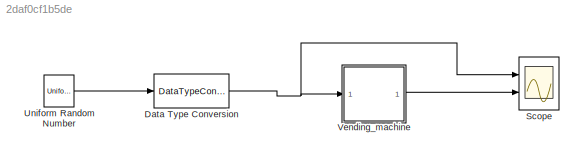
MODEL slx_2daf0cf1b5de
KIND model
CONFIG AbsTol = auto
CONFIG EnableMultiTasking = on
CONFIG FixedStep = 0.1
CONFIG MaxStep = auto
CONFIG MinStep = auto
CONFIG RelTol = 1e-3
CONFIG SampleTimeConstraint = Unconstrained
CONFIG Solver = FixedStepDiscrete
CONFIG SolverName = FixedStepDiscrete
CONFIG StartTime = 0.0
CONFIG StopTime = 200
BLOCK [DataTypeConversion] Data Type Conversion
  OutDataTypeStr = int8
  RndMeth = Nearest
BLOCK [Scope] Scope
  Floating = off
  NumInputPorts = 2
  Ports = [2]
  ScopeSpecificationString = Simulink.scopes.TimeScopeBlockCfg('CurrentConfiguration', extmgr.ConfigurationSet(extmgr.Configuration('Core','General UI',true),extmgr.Configuration('Core','Source UI',true),extmgr.Configuration('Sources','WiredSimulink',true),extmgr.Configuration('Visuals','Time Domain',true),extmgr.Configuration('Tools','Plot Navigation',true),extmgr.Configuration('Tools','Measurements',true,'Version','2020a'))...<+19ch>
BLOCK [UniformRandomNumber] Uniform Random Number
  Maximum = 2
  Minimum = 0
  SampleTime = 10
  Seed = 337
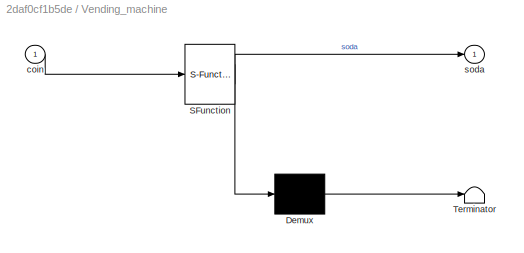
BLOCK [SubSystem] Vending_machine
  ErrorFcn = Stateflow.Translate.translate
  PermitHierarchicalResolution = ExplicitOnly
  Ports = [1, 1]
  RequestExecContextInheritance = off
  SFBlockType = Chart
  TreatAsAtomicUnit = on
BLOCK [Demux] Vending_machine/ Demux 
  Outputs = 1
  Ports = [1, 1]
BLOCK [S-Function] Vending_machine/ SFunction 
  EnableBusSupport = on
  FunctionName = sf_sfun
  PortCounts = [1 2]
  Ports = [1, 2]
  SFcnIsStateOwnerBlock = off
  SFunctionDeploymentMode = off
  Tag = Stateflow S-Function 3
BLOCK [Terminator] Vending_machine/ Terminator 
BLOCK [Inport] Vending_machine/coin
BLOCK [Outport] Vending_machine/soda
NET Data Type Conversion:1 -> Scope:1, Vending_machine:1
LINE Uniform Random Number:1 -> Data Type Conversion:1
LINE Vending_machine:1 -> Scope:2
note: NET lines group one-source signal fan-out (src -> all destinations, sorted); 1:1 wires keep LINE
CHART Vending_machine states=3 transitions=7
  STATE_LABEL 'got_0'
  STATE_LABEL 'got_nickel'
  STATE_LABEL 'got_dime'
CHART  states=0 transitions=0
